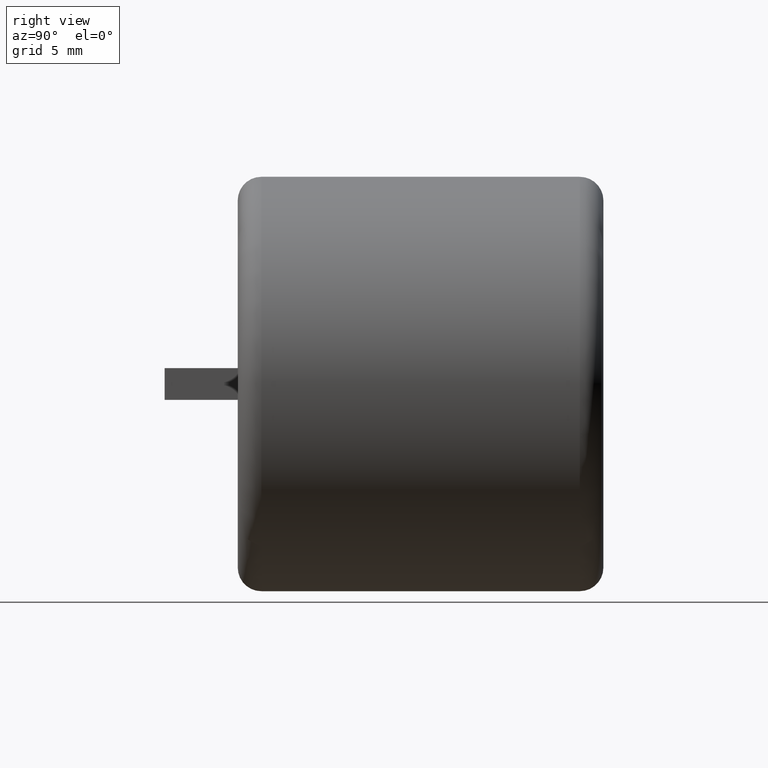
[diagram: clean part render]
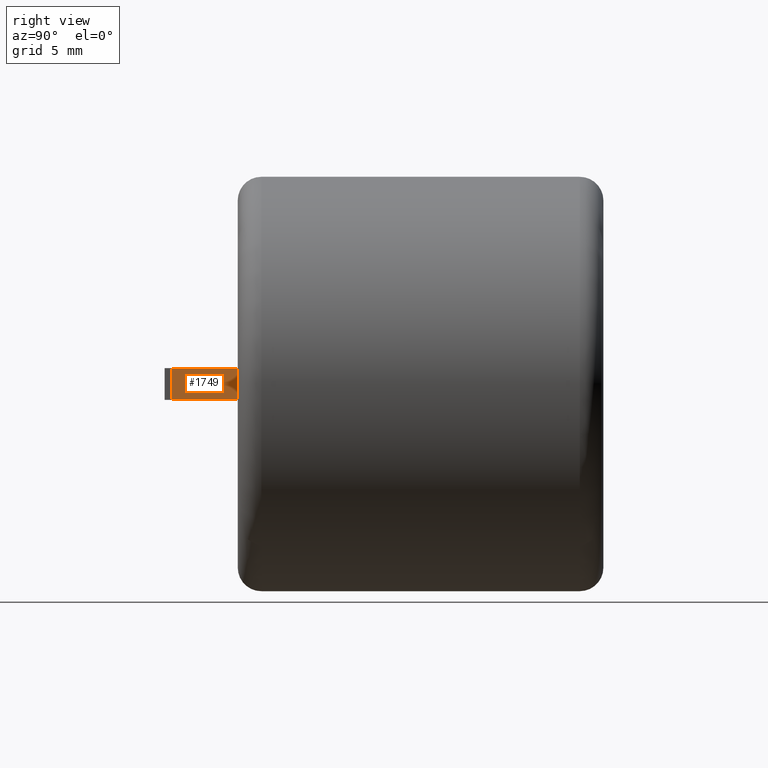
[diagram: same view with one face highlighted and labeled with its STEP entity id]
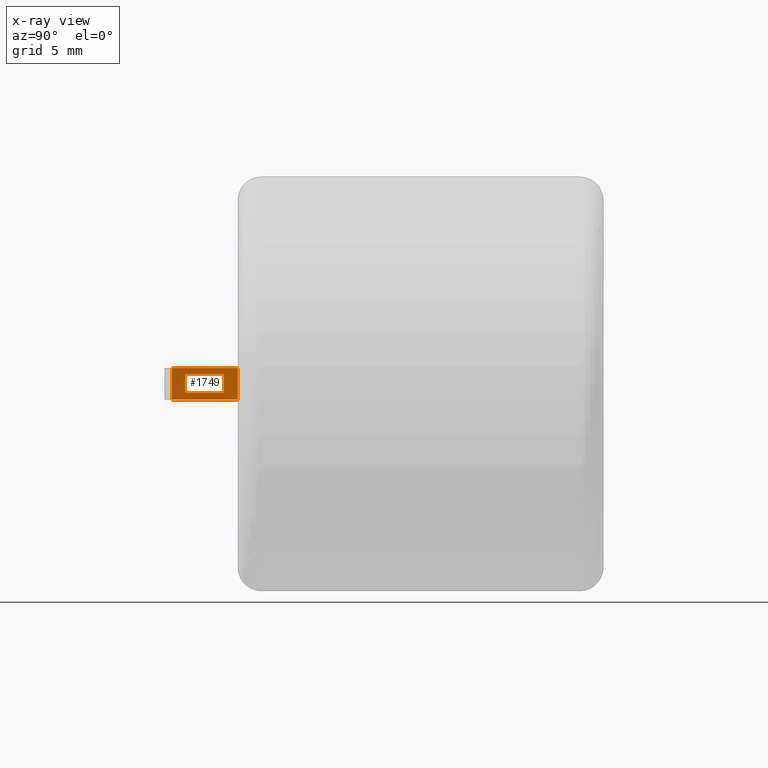
[diagram: x-ray of the same camera — body ghosted, the highlighted face saturated]
A machine part, right view. The second image highlights one B-rep face of the part: STEP entity #1749.
The next image is the same camera in x-ray: the body ghosted, the highlighted face saturated — about 0% of this face is hidden behind the body in this view.
In plain terms, the highlighted planar face has unit normal (-1, 0, 0).
Its self-contained STEP definition (entity closure, byte-faithful):
#270 = DIRECTION ( 'NONE',  ( -0.0000000000000000000, 1.000000000000000000, -0.0000000000000000000 ) ) ;
#331 = EDGE_CURVE ( 'NONE', #2517, #2104, #2240, .T. ) ;
#443 = DIRECTION ( 'NONE',  ( 0.0000000000000000000, 0.0000000000000000000, 1.000000000000000000 ) ) ;
#510 = CARTESIAN_POINT ( 'NONE',  ( 2.790000000000000000, 0.0000000000000000000, -0.6500000000000028000 ) ) ;
#740 = CARTESIAN_POINT ( 'NONE',  ( 2.790000000000000000, -2.700000000000000200, -2.051283388571817300E-015 ) ) ;
#875 = CARTESIAN_POINT ( 'NONE',  ( 2.790000000000000000, 0.0000000000000000000, 0.6499999999999986900 ) ) ;
#956 = DIRECTION ( 'NONE',  ( 0.0000000000000000000, 0.0000000000000000000, 1.000000000000000000 ) ) ;
#1004 = AXIS2_PLACEMENT_3D ( 'NONE', #740, #2246, #956 ) ;
#1008 = FACE_OUTER_BOUND ( 'NONE', #1684, .T. ) ;
#1045 = VECTOR ( 'NONE', #1183, 1000.000000000000000 ) ;
#1164 = VERTEX_POINT ( 'NONE', #2526 ) ;
#1183 = DIRECTION ( 'NONE',  ( -0.0000000000000000000, 1.000000000000000000, -0.0000000000000000000 ) ) ;
#1287 = CARTESIAN_POINT ( 'NONE',  ( 2.790000000000000000, 0.0000000000000000000, -2.051283388571817300E-015 ) ) ;
#1310 = VECTOR ( 'NONE', #2118, 1000.000000000000000 ) ;
#1315 = VERTEX_POINT ( 'NONE', #875 ) ;
#1405 = CARTESIAN_POINT ( 'NONE',  ( 2.790000000000000000, -2.700000000000000200, -0.6500000000000028000 ) ) ;
#1421 = ORIENTED_EDGE ( 'NONE', *, *, #331, .T. ) ;
#1543 = EDGE_CURVE ( 'NONE', #2517, #1164, #2329, .T. ) ;
#1550 = ORIENTED_EDGE ( 'NONE', *, *, #2516, .F. ) ;
#1624 = ORIENTED_EDGE ( 'NONE', *, *, #1793, .T. ) ;
#1684 = EDGE_LOOP ( 'NONE', ( #1624, #1550, #1887, #1421 ) ) ;
#1749 = ADVANCED_FACE ( 'NONE', ( #1008 ), #2655, .F. ) ;
#1793 = EDGE_CURVE ( 'NONE', #2104, #1315, #2475, .T. ) ;
#1887 = ORIENTED_EDGE ( 'NONE', *, *, #1543, .F. ) ;
#1978 = CARTESIAN_POINT ( 'NONE',  ( 2.790000000000000000, -2.700000000000000200, 0.6499999999999986900 ) ) ;
#2104 = VERTEX_POINT ( 'NONE', #510 ) ;
#2118 = DIRECTION ( 'NONE',  ( 0.0000000000000000000, 0.0000000000000000000, 1.000000000000000000 ) ) ;
#2188 = VECTOR ( 'NONE', #270, 1000.000000000000000 ) ;
#2240 = LINE ( 'NONE', #2507, #1045 ) ;
#2246 = DIRECTION ( 'NONE',  ( -1.000000000000000000, 0.0000000000000000000, 0.0000000000000000000 ) ) ;
#2329 = LINE ( 'NONE', #1405, #2427 ) ;
#2427 = VECTOR ( 'NONE', #443, 1000.000000000000000 ) ;
#2475 = LINE ( 'NONE', #1287, #1310 ) ;
#2507 = CARTESIAN_POINT ( 'NONE',  ( 2.790000000000000000, -2.700000000000000200, -0.6500000000000028000 ) ) ;
#2516 = EDGE_CURVE ( 'NONE', #1164, #1315, #2761, .T. ) ;
#2517 = VERTEX_POINT ( 'NONE', #2598 ) ;
#2526 = CARTESIAN_POINT ( 'NONE',  ( 2.790000000000000000, -2.700000000000000200, 0.6499999999999986900 ) ) ;
#2598 = CARTESIAN_POINT ( 'NONE',  ( 2.790000000000000000, -2.700000000000000200, -0.6500000000000028000 ) ) ;
#2655 = PLANE ( 'NONE',  #1004 ) ;
#2761 = LINE ( 'NONE', #1978, #2188 ) ;